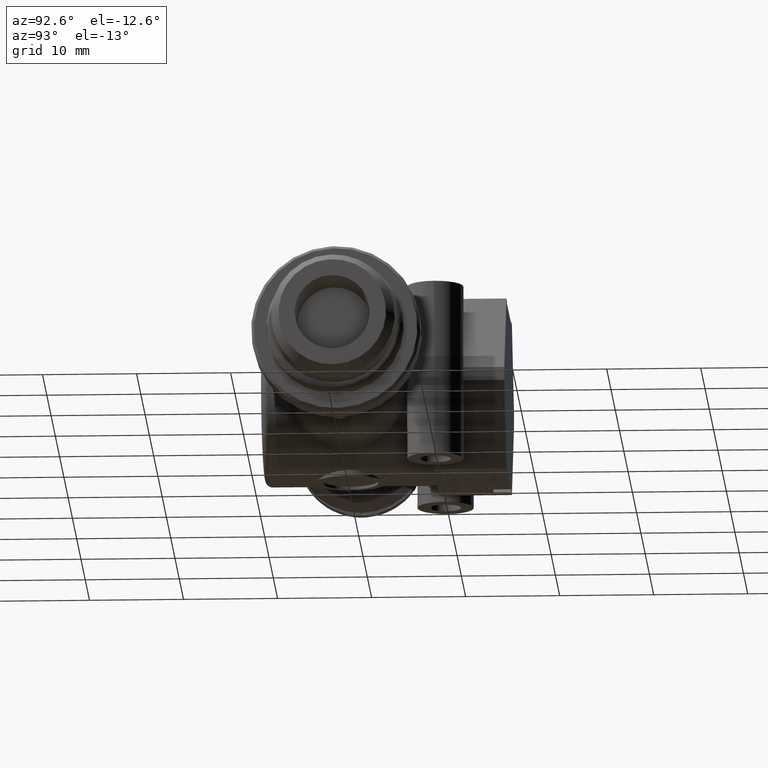
[diagram: clean part render]
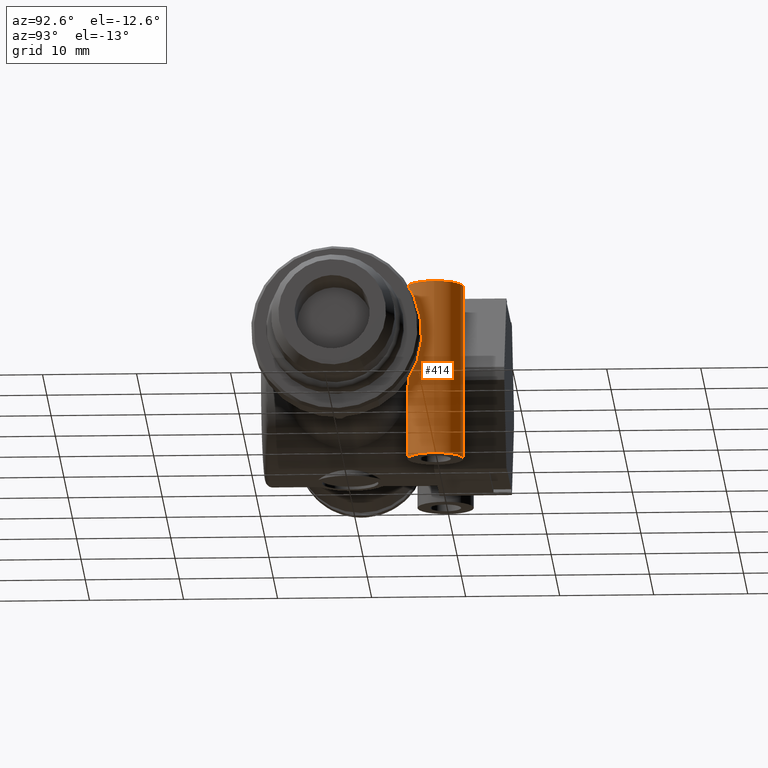
[diagram: same view with one face highlighted and labeled with its STEP entity id]
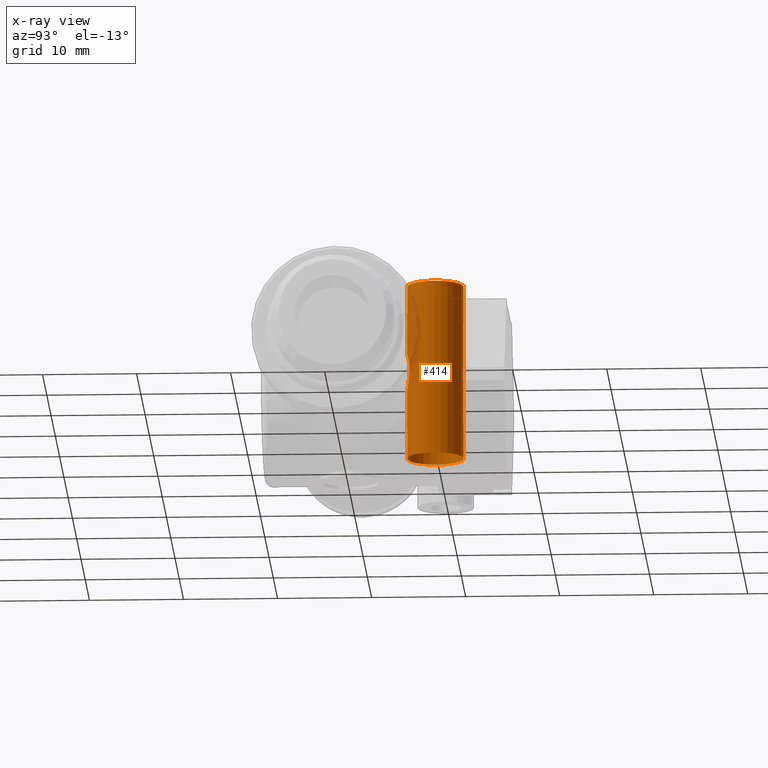
[diagram: x-ray of the same camera — body ghosted, the highlighted face saturated]
A machine part, auxiliary view. The second image highlights one B-rep face of the part: STEP entity #414.
The next image is the same camera in x-ray: the body ghosted, the highlighted face saturated — about 8% of this face is hidden behind the body in this view.
In plain terms, the highlighted cylindrical surface (bore or boss wall) has radius 3 mm, axis along (0, 0, 1).
Its self-contained STEP definition (entity closure, byte-faithful):
#414 = ADVANCED_FACE( '', ( #872, #873, #874, #875 ), #876, .T. );
#872 = FACE_OUTER_BOUND( '', #1409, .T. );
#873 = FACE_OUTER_BOUND( '', #1410, .T. );
#874 = FACE_BOUND( '', #1411, .T. );
#875 = FACE_BOUND( '', #1412, .T. );
#876 = CYLINDRICAL_SURFACE( '', #1413, 3.00000000000000 );
#1409 = EDGE_LOOP( '', ( #2292 ) );
#1410 = EDGE_LOOP( '', ( #2293 ) );
#1411 = EDGE_LOOP( '', ( #2294 ) );
#1412 = EDGE_LOOP( '', ( #2295, #2296, #2297, #2298, #2299, #2300 ) );
#1413 = AXIS2_PLACEMENT_3D( '', #2301, #2302, #2303 );
#2292 = ORIENTED_EDGE( '', *, *, #3010, .F. );
#2293 = ORIENTED_EDGE( '', *, *, #3154, .T. );
#2294 = ORIENTED_EDGE( '', *, *, #2947, .T. );
#2295 = ORIENTED_EDGE( '', *, *, #3155, .T. );
#2296 = ORIENTED_EDGE( '', *, *, #3078, .T. );
#2297 = ORIENTED_EDGE( '', *, *, #3111, .T. );
#2298 = ORIENTED_EDGE( '', *, *, #3156, .T. );
#2299 = ORIENTED_EDGE( '', *, *, #3069, .T. );
#2300 = ORIENTED_EDGE( '', *, *, #2862, .T. );
#2301 = CARTESIAN_POINT( '', ( 12.0000000000000, 9.60000000000000, 9.35000000000000 ) );
#2302 = DIRECTION( '', ( 0.000000000000000, -0.000000000000000, 1.00000000000000 ) );
#2303 = DIRECTION( '', ( -1.00000000000000, 0.000000000000000, 0.000000000000000 ) );
#2862 = EDGE_CURVE( '', #3322, #3323, #3324, .F. );
#2947 = EDGE_CURVE( '', #3466, #3466, #3467, .T. );
#3010 = EDGE_CURVE( '', #3571, #3571, #3572, .T. );
#3069 = EDGE_CURVE( '', #3663, #3322, #3664, .T. );
#3078 = EDGE_CURVE( '', #3680, #3678, #3681, .T. );
#3111 = EDGE_CURVE( '', #3678, #3726, #3727, .T. );
#3154 = EDGE_CURVE( '', #3787, #3787, #3788, .T. );
#3155 = EDGE_CURVE( '', #3323, #3680, #3789, .T. );
#3156 = EDGE_CURVE( '', #3726, #3663, #3790, .F. );
#3322 = VERTEX_POINT( '', #4000 );
#3323 = VERTEX_POINT( '', #4001 );
#3324 = ELLIPSE( '', #4002, 6.00000000000000, 3.00000000000000 );
#3466 = VERTEX_POINT( '', #4189 );
#3467 = B_SPLINE_CURVE_WITH_KNOTS( '', 3, ( #4190, #4191, #4192, #4193, #4194, #4195, #4196, #4197, #4198, #4199, #4200, #4201, #4202, #4203, #4204, #4205, #4206, #4207, #4208, #4209, #4210, #4211, #4212, #4213, #4214, #4215, #4216, #4217, #4218, #4219, #4220, #4221, #4222, #4223, #4224, #4225, #4226, #4227, #4228, #4229, #4230, #4231, #4232, #4233 ), .UNSPECIFIED., .T., .F., ( 2, 2, 2, 2, 2, 2, 2, 2, 2, 2, 2, 2, 2, 2, 2, 2, 2, 2, 2, 2, 2, 2, 2, 2 ), ( -0.000663314908686696, 0.000000000000000, 0.000663314908686694, 0.00132662981737339, 0.00198994472606008, 0.00232160218040343, 0.00265325963474678, 0.00298491708909013, 0.00331657454343348, 0.00397988945212018, 0.00464320436080687, 0.00530651926949357, 0.00596983417818027, 0.00663314908686696, 0.00729646399555366, 0.00762812144989701, 0.00795977890424036, 0.00829143635858370, 0.00862309381292705, 0.00895475126727040, 0.00928640872161375, 0.00994972363030044, 0.0106130385389871, 0.0112763534476738 ), .UNSPECIFIED. );
#3571 = VERTEX_POINT( '', #4556 );
#3572 = CIRCLE( '', #4557, 3.00000000000000 );
#3663 = VERTEX_POINT( '', #4812 );
#3664 = B_SPLINE_CURVE_WITH_KNOTS( '', 3, ( #4813, #4814, #4815, #4816 ), .UNSPECIFIED., .F., .F., ( 4, 4 ), ( 6.50521303491303E-019, 0.00141144808240627 ), .UNSPECIFIED. );
#3678 = VERTEX_POINT( '', #4858 );
#3680 = VERTEX_POINT( '', #4860 );
#3681 = B_SPLINE_CURVE_WITH_KNOTS( '', 3, ( #4861, #4862, #4863, #4864, #4865, #4866, #4867, #4868, #4869, #4870, #4871, #4872, #4873, #4874, #4875, #4876, #4877, #4878, #4879, #4880, #4881, #4882, #4883, #4884 ), .UNSPECIFIED., .F., .F., ( 4, 2, 2, 2, 2, 2, 2, 2, 2, 2, 2, 4 ), ( 0.000411369188282286, 0.000786886969048581, 0.00116240474981488, 0.00153792253058117, 0.00191344031134747, 0.00266447587288006, 0.00341551143441264, 0.00416654699594523, 0.00491758255747782, 0.00566861811901041, 0.00604413589977670, 0.00641965368054299 ), .UNSPECIFIED. );
#3726 = VERTEX_POINT( '', #4940 );
#3727 = LINE( '', #4941, #4942 );
#3787 = VERTEX_POINT( '', #5024 );
#3788 = CIRCLE( '', #5025, 3.00000000000000 );
#3789 = LINE( '', #5026, #5027 );
#3790 = ELLIPSE( '', #5028, 6.00000000000000, 3.00000000000000 );
#4000 = CARTESIAN_POINT( '', ( 11.4282305532251, 12.5450092868673, 0.705724041203134 ) );
#4001 = CARTESIAN_POINT( '', ( 9.02678625053630, 9.20000000000000, 4.86514758500697 ) );
#4002 = AXIS2_PLACEMENT_3D( '', #5438, #5439, #5440 );
#4189 = CARTESIAN_POINT( '', ( 10.6923303169378, 6.90000000000000, 0.000000000000000 ) );
#4190 = CARTESIAN_POINT( '', ( 10.6923303169378, 6.90000000000000, -0.223372458043953 ) );
#4191 = CARTESIAN_POINT( '', ( 10.6923303169378, 6.90000000000000, 0.223372458043953 ) );
#4192 = CARTESIAN_POINT( '', ( 10.7139512423636, 6.88917016355307, 0.443274782966415 ) );
#4193 = CARTESIAN_POINT( '', ( 10.8053640652712, 6.84766194070503, 0.875604945979324 ) );
#4194 = CARTESIAN_POINT( '', ( 10.8753629535739, 6.81670981671288, 1.08691406947181 ) );
#4195 = CARTESIAN_POINT( '', ( 11.0770753660436, 6.74347713984063, 1.47459519330981 ) );
#4196 = CARTESIAN_POINT( '', ( 11.2105667029262, 6.70023306052220, 1.65431009805005 ) );
#4197 = CARTESIAN_POINT( '', ( 11.4725978894323, 6.64537475773597, 1.85848340608793 ) );
#4198 = CARTESIAN_POINT( '', ( 11.5676859332318, 6.62943124992445, 1.91371398316989 ) );
#4199 = CARTESIAN_POINT( '', ( 11.7778401497762, 6.60637023795532, 1.99186650805541 ) );
#4200 = CARTESIAN_POINT( '', ( 11.8864643491262, 6.60004875053598, 2.01230129905222 ) );
#4201 = CARTESIAN_POINT( '', ( 12.1109445560994, 6.59995180894506, 2.01261922559176 ) );
#4202 = CARTESIAN_POINT( '', ( 12.2213779373212, 6.60631051746791, 1.99206300190535 ) );
#4203 = CARTESIAN_POINT( '', ( 12.4316389207332, 6.62933126197752, 1.91405869182083 ) );
#4204 = CARTESIAN_POINT( '', ( 12.5278741754911, 6.64546274819553, 1.85816701958692 ) );
#4205 = CARTESIAN_POINT( '', ( 12.7895400644762, 6.70027715869431, 1.65412370698782 ) );
#4206 = CARTESIAN_POINT( '', ( 12.9228629822962, 6.74345822909121, 1.47466947075658 ) );
#4207 = CARTESIAN_POINT( '', ( 13.1245271766240, 6.81666645870936, 1.08716941006738 ) );
#4208 = CARTESIAN_POINT( '', ( 13.1947958122588, 6.84773407728518, 0.874889253120810 ) );
#4209 = CARTESIAN_POINT( '', ( 13.2859345838451, 6.88911878010131, 0.443774303102876 ) );
#4210 = CARTESIAN_POINT( '', ( 13.3075610836491, 6.89994740292317, 0.224449333281119 ) );
#4211 = CARTESIAN_POINT( '', ( 13.3077774944374, 6.90005221541269, -0.221203731647836 ) );
#4212 = CARTESIAN_POINT( '', ( 13.2861296884393, 6.88921818097250, -0.441895178940651 ) );
#4213 = CARTESIAN_POINT( '', ( 13.1956764300181, 6.84812327300912, -0.871668590625960 ) );
#4214 = CARTESIAN_POINT( '', ( 13.1255604070059, 6.81708742352270, -1.08459848474594 ) );
#4215 = CARTESIAN_POINT( '', ( 12.9240862248988, 6.74385692111073, -1.47289804149897 ) );
#4216 = CARTESIAN_POINT( '', ( 12.7907975025568, 6.70065738615423, -1.65258797155132 ) );
#4217 = CARTESIAN_POINT( '', ( 12.5300651710270, 6.64586425750404, -1.85673163742504 ) );
#4218 = CARTESIAN_POINT( '', ( 12.4338046558688, 6.62967983387610, -1.91285203674129 ) );
#4219 = CARTESIAN_POINT( '', ( 12.2254230785342, 6.60664522577093, -1.99095365967340 ) );
#4220 = CARTESIAN_POINT( '', ( 12.1147350630086, 6.60011989315509, -2.01206798101947 ) );
#4221 = CARTESIAN_POINT( '', ( 11.8916227491032, 6.59988347532709, -2.01284333130271 ) );
#4222 = CARTESIAN_POINT( '', ( 11.7800355546668, 6.60621940774216, -1.99235747638848 ) );
#4223 = CARTESIAN_POINT( '', ( 11.5704983727618, 6.62903467809028, -1.91507765211409 ) );
#4224 = CARTESIAN_POINT( '', ( 11.4739866875253, 6.64511693112195, -1.85940942255562 ) );
#4225 = CARTESIAN_POINT( '', ( 11.2986221775463, 6.68176541282014, -1.72307672406444 ) );
#4226 = CARTESIAN_POINT( '', ( 11.2223082529420, 6.70169241225708, -1.64471454590283 ) );
#4227 = CARTESIAN_POINT( '', ( 11.0867370664864, 6.74151401247438, -1.47300914648214 ) );
#4228 = CARTESIAN_POINT( '', ( 11.0273684885588, 6.76153552003812, -1.37890772815553 ) );
#4229 = CARTESIAN_POINT( '', ( 10.8756926157169, 6.81656623037998, -1.08785167778526 ) );
#4230 = CARTESIAN_POINT( '', ( 10.8056785633163, 6.84752264253858, -0.876784473247790 ) );
#4231 = CARTESIAN_POINT( '', ( 10.7139825959845, 6.88915243253530, -0.443729775764339 ) );
#4232 = CARTESIAN_POINT( '', ( 10.6923303169378, 6.90000000000000, -0.223372458043953 ) );
#4233 = CARTESIAN_POINT( '', ( 10.6923303169378, 6.90000000000000, 0.223372458043953 ) );
#4556 = CARTESIAN_POINT( '', ( 15.0000000000000, 9.60000000000000, 9.35000000000000 ) );
#4557 = AXIS2_PLACEMENT_3D( '', #5615, #5616, #5617 );
#4812 = CARTESIAN_POINT( '', ( 11.4282305532251, 12.5450092868673, -0.705724041203131 ) );
#4813 = CARTESIAN_POINT( '', ( 11.4282305532251, 12.5450092868673, -0.705724041203132 ) );
#4814 = CARTESIAN_POINT( '', ( 11.4572841277636, 12.5506499978541, -0.235241347067710 ) );
#4815 = CARTESIAN_POINT( '', ( 11.4572841277636, 12.5506499978541, 0.235241347067713 ) );
#4816 = CARTESIAN_POINT( '', ( 11.4282305532251, 12.5450092868673, 0.705724041203135 ) );
#4858 = CARTESIAN_POINT( '', ( 9.02678625053630, 9.20000000000000, -2.62242826157911 ) );
#4860 = CARTESIAN_POINT( '', ( 9.02678625053630, 9.20000000000000, 2.62242826157911 ) );
#4861 = CARTESIAN_POINT( '', ( 9.02678625053630, 9.20000000000000, 2.62242826157911 ) );
#4862 = CARTESIAN_POINT( '', ( 9.04212068651192, 9.08601861029255, 2.56964486313408 ) );
#4863 = CARTESIAN_POINT( '', ( 9.06266099999865, 8.98281102078345, 2.49713789076783 ) );
#4864 = CARTESIAN_POINT( '', ( 9.10719422978917, 8.79965169280477, 2.32949249994492 ) );
#4865 = CARTESIAN_POINT( '', ( 9.13092175128524, 8.72024480121961, 2.23542796235512 ) );
#4866 = CARTESIAN_POINT( '', ( 9.17825790095592, 8.57855458613218, 2.03235137378192 ) );
#4867 = CARTESIAN_POINT( '', ( 9.20168886943548, 8.51705381947301, 1.92398430343214 ) );
#4868 = CARTESIAN_POINT( '', ( 9.24532004790857, 8.41043874688824, 1.70201376653832 ) );
#4869 = CARTESIAN_POINT( '', ( 9.26573599038205, 8.36480234827592, 1.58753178806570 ) );
#4870 = CARTESIAN_POINT( '', ( 9.32149127915953, 8.24602707381262, 1.23542819252035 ) );
#4871 = CARTESIAN_POINT( '', ( 9.35099182384231, 8.19131378956690, 0.989762189760738 ) );
#4872 = CARTESIAN_POINT( '', ( 9.38999584867337, 8.12029750055208, 0.498653430493098 ) );
#4873 = CARTESIAN_POINT( '', ( 9.39999937757450, 8.10333812656680, 0.250544410001699 ) );
#4874 = CARTESIAN_POINT( '', ( 9.40000062236748, 8.10333596411483, -0.250497703133467 ) );
#4875 = CARTESIAN_POINT( '', ( 9.38981580708663, 8.12061352167103, -0.501761491298760 ) );
#4876 = CARTESIAN_POINT( '', ( 9.35076577767721, 8.19173727292411, -0.991758466656487 ) );
#4877 = CARTESIAN_POINT( '', ( 9.32188718125675, 8.24524601923618, -1.23252764827925 ) );
#4878 = CARTESIAN_POINT( '', ( 9.24752355055476, 8.40353854489096, -1.70294251394073 ) );
#4879 = CARTESIAN_POINT( '', ( 9.20188646120618, 8.50772898936413, -1.93106819338534 ) );
#4880 = CARTESIAN_POINT( '', ( 9.13064344687647, 8.72112753757185, -2.23657884929724 ) );
#4881 = CARTESIAN_POINT( '', ( 9.10696907427233, 8.80055988691752, -2.33034453369805 ) );
#4882 = CARTESIAN_POINT( '', ( 9.06282217568560, 8.98216599318444, -2.49652670271925 ) );
#4883 = CARTESIAN_POINT( '', ( 9.04206341653163, 9.08644430002465, -2.56984199488340 ) );
#4884 = CARTESIAN_POINT( '', ( 9.02678625053630, 9.20000000000000, -2.62242826157911 ) );
#4940 = CARTESIAN_POINT( '', ( 9.02678625053630, 9.20000000000000, -4.86514758500697 ) );
#4941 = CARTESIAN_POINT( '', ( 9.02678625053630, 9.20000000000000, 9.35000000000000 ) );
#4942 = VECTOR( '', #5751, 1000.00000000000 );
#5024 = CARTESIAN_POINT( '', ( 15.0000000000000, 9.60000000000000, -9.35000000000000 ) );
#5025 = AXIS2_PLACEMENT_3D( '', #5799, #5800, #5801 );
#5026 = CARTESIAN_POINT( '', ( 9.02678625053630, 9.20000000000000, 9.35000000000000 ) );
#5027 = VECTOR( '', #5802, 1000.00000000000 );
#5028 = AXIS2_PLACEMENT_3D( '', #5803, #5804, #5805 );
#5438 = CARTESIAN_POINT( '', ( 12.0000000000000, 9.60000000000000, -0.284609690826526 ) );
#5439 = DIRECTION( '', ( -0.866025403784439, 0.000000000000000, -0.500000000000000 ) );
#5440 = DIRECTION( '', ( 0.500000000000000, -0.000000000000000, -0.866025403784438 ) );
#5615 = CARTESIAN_POINT( '', ( 12.0000000000000, 9.60000000000000, 9.35000000000000 ) );
#5616 = DIRECTION( '', ( 0.000000000000000, 0.000000000000000, 1.00000000000000 ) );
#5617 = DIRECTION( '', ( 1.00000000000000, 0.000000000000000, 0.000000000000000 ) );
#5751 = DIRECTION( '', ( -0.000000000000000, -0.000000000000000, -1.00000000000000 ) );
#5799 = CARTESIAN_POINT( '', ( 12.0000000000000, 9.60000000000000, -9.35000000000000 ) );
#5800 = DIRECTION( '', ( 0.000000000000000, 0.000000000000000, 1.00000000000000 ) );
#5801 = DIRECTION( '', ( 1.00000000000000, 0.000000000000000, 0.000000000000000 ) );
#5802 = DIRECTION( '', ( -0.000000000000000, -0.000000000000000, -1.00000000000000 ) );
#5803 = CARTESIAN_POINT( '', ( 12.0000000000000, 9.60000000000000, 0.284609690826528 ) );
#5804 = DIRECTION( '', ( -0.866025403784439, 0.000000000000000, 0.500000000000000 ) );
#5805 = DIRECTION( '', ( -0.500000000000000, 0.000000000000000, -0.866025403784439 ) );